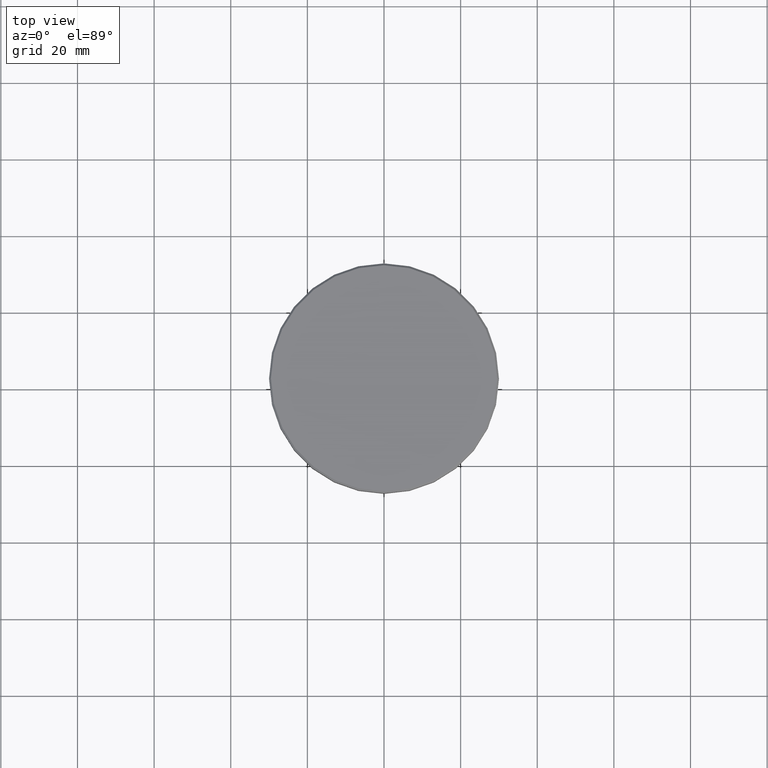
[diagram: clean part render]
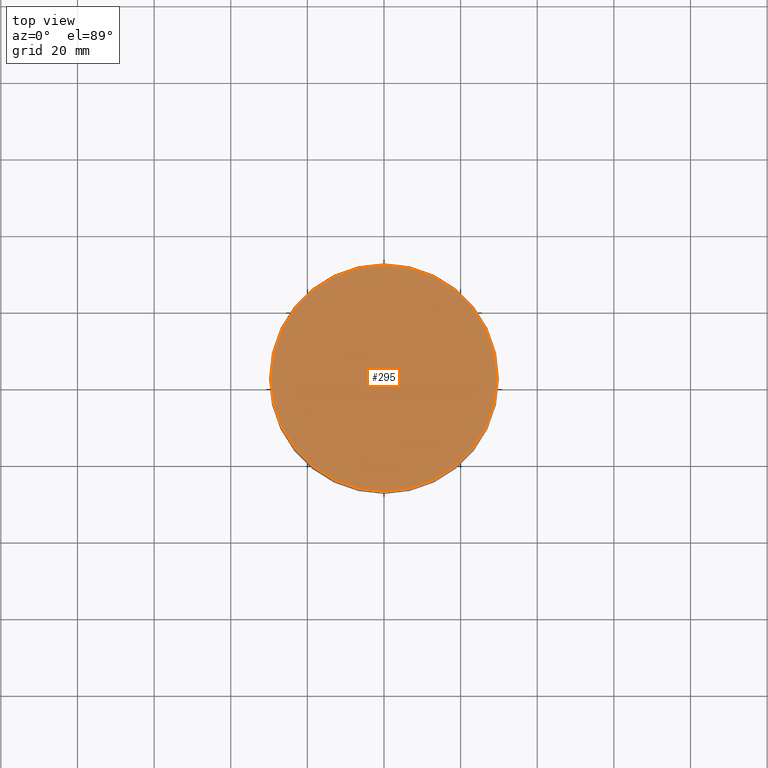
[diagram: same view with one face highlighted and labeled with its STEP entity id]
A machine part, top view. The second image highlights one B-rep face of the part: STEP entity #295.
In plain terms, the highlighted planar face has unit normal (0, -0, 1).
Its self-contained STEP definition (entity closure, byte-faithful):
#11 = VERTEX_POINT ( 'NONE', #794 ) ;
#88 = AXIS2_PLACEMENT_3D ( 'NONE', #924, #374, #285 ) ;
#166 = ORIENTED_EDGE ( 'NONE', *, *, #342, .T. ) ;
#219 = CARTESIAN_POINT ( 'NONE',  ( 29.49999999999994316, 3.643324227463372235E-15, 0.000000000000000000 ) ) ;
#223 = CARTESIAN_POINT ( 'NONE',  ( 0.000000000000000000, 0.000000000000000000, 0.000000000000000000 ) ) ;
#229 = DIRECTION ( 'NONE',  ( -0.000000000000000000, -0.000000000000000000, 1.000000000000000000 ) ) ;
#285 = DIRECTION ( 'NONE',  ( 1.000000000000000000, 0.000000000000000000, 0.000000000000000000 ) ) ;
#295 = ADVANCED_FACE ( 'NONE', ( #307 ), #581, .T. ) ;
#307 = FACE_OUTER_BOUND ( 'NONE', #1084, .T. ) ;
#342 = EDGE_CURVE ( 'NONE', #929, #11, #809, .T. ) ;
#374 = DIRECTION ( 'NONE',  ( 0.000000000000000000, -0.000000000000000000, 1.000000000000000000 ) ) ;
#467 = ORIENTED_EDGE ( 'NONE', *, *, #1003, .T. ) ;
#581 = PLANE ( 'NONE',  #88 ) ;
#751 = DIRECTION ( 'NONE',  ( -0.000000000000000000, -0.000000000000000000, 1.000000000000000000 ) ) ;
#794 = CARTESIAN_POINT ( 'NONE',  ( -29.49999999999994316, 0.000000000000000000, 0.000000000000000000 ) ) ;
#809 = CIRCLE ( 'NONE', #1182, 29.49999999999994316 ) ;
#924 = CARTESIAN_POINT ( 'NONE',  ( 0.000000000000000000, 0.000000000000000000, 0.000000000000000000 ) ) ;
#929 = VERTEX_POINT ( 'NONE', #219 ) ;
#932 = AXIS2_PLACEMENT_3D ( 'NONE', #223, #229, #948 ) ;
#948 = DIRECTION ( 'NONE',  ( 1.000000000000000000, 0.000000000000000000, 0.000000000000000000 ) ) ;
#1003 = EDGE_CURVE ( 'NONE', #11, #929, #1178, .T. ) ;
#1010 = DIRECTION ( 'NONE',  ( 1.000000000000000000, 0.000000000000000000, 0.000000000000000000 ) ) ;
#1015 = CARTESIAN_POINT ( 'NONE',  ( 0.000000000000000000, 0.000000000000000000, 0.000000000000000000 ) ) ;
#1084 = EDGE_LOOP ( 'NONE', ( #467, #166 ) ) ;
#1178 = CIRCLE ( 'NONE', #932, 29.49999999999994316 ) ;
#1182 = AXIS2_PLACEMENT_3D ( 'NONE', #1015, #751, #1010 ) ;